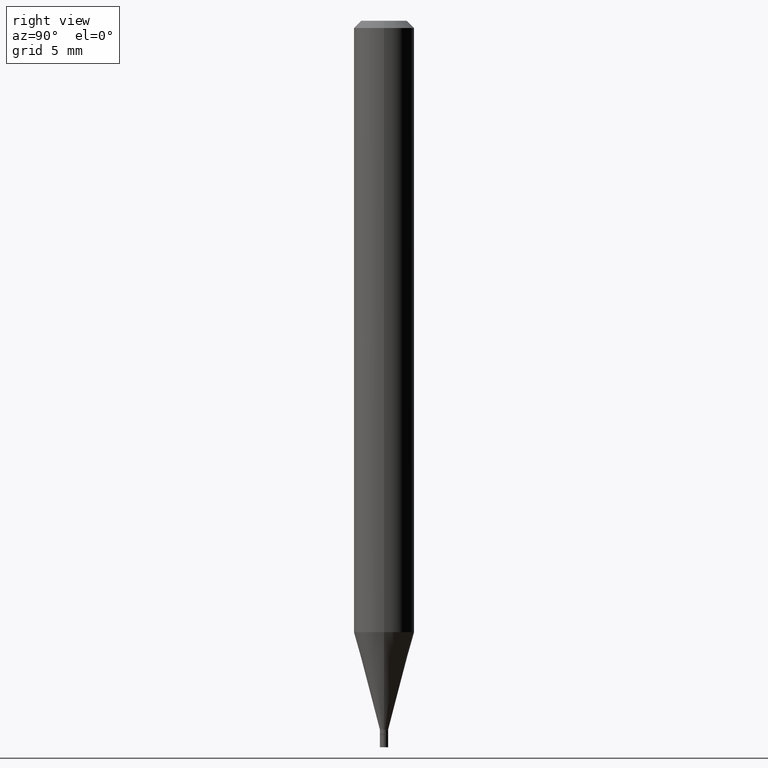
[diagram: clean part render]
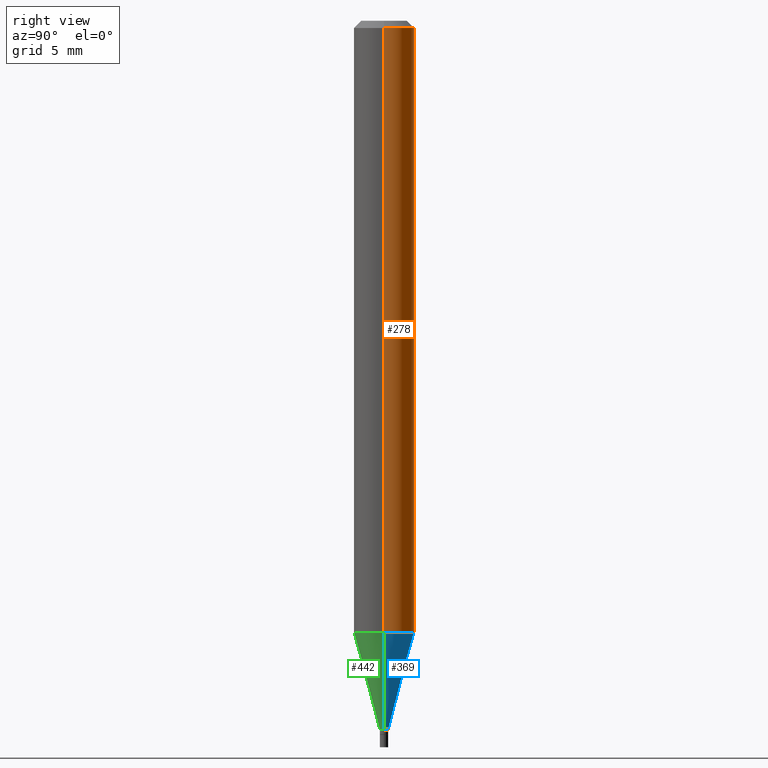
[diagram: same view with three faces highlighted in distinct colors, each labeled with its STEP entity id]
A machine part, right view with three faces highlighted in distinct colors.
Their STEP definitions:

[orange] entity #278 — the highlighted cylindrical surface (edge-blend (fillet) strip) has radius 1.5875 mm, axis along (-0, 0, 1).
#16 = ORIENTED_EDGE ( 'NONE', *, *, #431, .T. ) ;
#21 = CARTESIAN_POINT ( 'NONE',  ( 0.06249999999999999306, -4.844323016908731836E-15, -1.262469256391280936 ) ) ;
#22 = CYLINDRICAL_SURFACE ( 'NONE', #131, 0.06250000000000000000 ) ;
#34 = AXIS2_PLACEMENT_3D ( 'NONE', #208, #90, #95 ) ;
#41 = LINE ( 'NONE', #184, #362 ) ;
#44 = DIRECTION ( 'NONE',  ( -2.445468806185136877E-29, 3.491481338843145188E-15, 1.000000000000000000 ) ) ;
#57 = DIRECTION ( 'NONE',  ( -2.445468806185136597E-29, 3.491481338843145583E-15, 1.000000000000000000 ) ) ;
#68 = ORIENTED_EDGE ( 'NONE', *, *, #85, .F. ) ;
#74 = DIRECTION ( 'NONE',  ( -2.445468806185136877E-29, 3.491481338843145188E-15, 1.000000000000000000 ) ) ;
#80 = CARTESIAN_POINT ( 'NONE',  ( -0.06250000000000000000, -1.786040824967931204E-15, -0.01499999999999999944 ) ) ;
#82 = VERTEX_POINT ( 'NONE', #80 ) ;
#85 = EDGE_CURVE ( 'NONE', #167, #319, #310, .T. ) ;
#90 = DIRECTION ( 'NONE',  ( -2.445468806185136597E-29, 3.491481338843145583E-15, 1.000000000000000000 ) ) ;
#95 = DIRECTION ( 'NONE',  ( 1.000000000000000000, -6.982962677686266711E-15, 0.000000000000000000 ) ) ;
#99 = DIRECTION ( 'NONE',  ( 1.000000000000000000, -6.982962677686266711E-15, 4.876176775795935793E-29 ) ) ;
#107 = EDGE_CURVE ( 'NONE', #167, #134, #260, .T. ) ;
#121 = CIRCLE ( 'NONE', #34, 0.06250000000000000000 ) ;
#131 = AXIS2_PLACEMENT_3D ( 'NONE', #370, #57, #99 ) ;
#134 = VERTEX_POINT ( 'NONE', #332 ) ;
#167 = VERTEX_POINT ( 'NONE', #21 ) ;
#184 = CARTESIAN_POINT ( 'NONE',  ( -0.06250000000000000000, 4.440892098500626162E-16, -3.074334431409316114E-30 ) ) ;
#208 = CARTESIAN_POINT ( 'NONE',  ( 3.668203209277705088E-31, -5.237222008264718399E-17, -0.01499999999999999944 ) ) ;
#260 = CIRCLE ( 'NONE', #413, 0.06250000000000000000 ) ;
#270 = EDGE_CURVE ( 'NONE', #319, #82, #121, .T. ) ;
#275 = CARTESIAN_POINT ( 'NONE',  ( 3.087329185272623202E-29, -4.407887849553340167E-15, -1.262469256391280936 ) ) ;
#278 = ADVANCED_FACE ( 'NONE', ( #372 ), #22, .T. ) ;
#291 = EDGE_LOOP ( 'NONE', ( #409, #16, #345, #68 ) ) ;
#295 = DIRECTION ( 'NONE',  ( 1.000000000000000000, -6.982962677686262766E-15, 0.000000000000000000 ) ) ;
#310 = LINE ( 'NONE', #354, #327 ) ;
#319 = VERTEX_POINT ( 'NONE', #448 ) ;
#326 = DIRECTION ( 'NONE',  ( -2.445468806185136597E-29, 3.491481338843145583E-15, 1.000000000000000000 ) ) ;
#327 = VECTOR ( 'NONE', #44, 39.37007874015748143 ) ;
#332 = CARTESIAN_POINT ( 'NONE',  ( -0.06249999999999999306, -3.963798639703278339E-15, -1.262469256391280936 ) ) ;
#345 = ORIENTED_EDGE ( 'NONE', *, *, #270, .F. ) ;
#354 = CARTESIAN_POINT ( 'NONE',  ( 0.06250000000000000000, -4.364351673553916694E-16, 3.047610484872459871E-30 ) ) ;
#362 = VECTOR ( 'NONE', #74, 39.37007874015748143 ) ;
#370 = CARTESIAN_POINT ( 'NONE',  ( 0.000000000000000000, 0.000000000000000000, 0.000000000000000000 ) ) ;
#372 = FACE_OUTER_BOUND ( 'NONE', #291, .T. ) ;
#409 = ORIENTED_EDGE ( 'NONE', *, *, #107, .T. ) ;
#413 = AXIS2_PLACEMENT_3D ( 'NONE', #275, #326, #295 ) ;
#431 = EDGE_CURVE ( 'NONE', #134, #82, #41, .T. ) ;
#448 = CARTESIAN_POINT ( 'NONE',  ( 0.06250000000000000000, -4.888073874380388472E-16, -0.01499999999999999944 ) ) ;

[blue] entity #369 — the highlighted conical surface has half-angle 15 deg.
#2 = CIRCLE ( 'NONE', #247, 0.008499999999999922548 ) ;
#21 = CARTESIAN_POINT ( 'NONE',  ( 0.06249999999999999306, -4.844323016908731836E-15, -1.262469256391280936 ) ) ;
#33 = CARTESIAN_POINT ( 'NONE',  ( 0.008499999999999922548, -5.170883862826697886E-15, -1.463999999999999968 ) ) ;
#36 = CARTESIAN_POINT ( 'NONE',  ( -0.008499999999999922548, -5.051132547526757800E-15, -1.463999999999999968 ) ) ;
#37 = EDGE_CURVE ( 'NONE', #91, #124, #2, .T. ) ;
#48 = VECTOR ( 'NONE', #227, 39.37007874015747433 ) ;
#72 = FACE_OUTER_BOUND ( 'NONE', #142, .T. ) ;
#91 = VERTEX_POINT ( 'NONE', #33 ) ;
#107 = EDGE_CURVE ( 'NONE', #167, #134, #260, .T. ) ;
#124 = VERTEX_POINT ( 'NONE', #445 ) ;
#134 = VERTEX_POINT ( 'NONE', #332 ) ;
#142 = EDGE_LOOP ( 'NONE', ( #402, #166, #337, #324 ) ) ;
#144 = CARTESIAN_POINT ( 'NONE',  ( 0.008499999999999922548, -5.170883862826697886E-15, -1.463999999999999968 ) ) ;
#153 = LINE ( 'NONE', #144, #284 ) ;
#156 = CARTESIAN_POINT ( 'NONE',  ( 3.580166332255040005E-29, -5.111528680066365187E-15, -1.463999999999999968 ) ) ;
#166 = ORIENTED_EDGE ( 'NONE', *, *, #342, .T. ) ;
#167 = VERTEX_POINT ( 'NONE', #21 ) ;
#195 = CONICAL_SURFACE ( 'NONE', #322, 0.008499999999999922548, 0.2617993877991501295 ) ;
#224 = CARTESIAN_POINT ( 'NONE',  ( 3.580166332255040005E-29, -5.111528680066365187E-15, -1.463999999999999968 ) ) ;
#227 = DIRECTION ( 'NONE',  ( -0.2588190451025214611, 5.211531920934551042E-15, 0.9659258262890682012 ) ) ;
#246 = DIRECTION ( 'NONE',  ( -2.445468806185136597E-29, 3.491481338843145583E-15, 1.000000000000000000 ) ) ;
#247 = AXIS2_PLACEMENT_3D ( 'NONE', #224, #246, #348 ) ;
#250 = DIRECTION ( 'NONE',  ( -2.445468806185136597E-29, 3.491481338843145583E-15, 1.000000000000000000 ) ) ;
#260 = CIRCLE ( 'NONE', #413, 0.06250000000000000000 ) ;
#275 = CARTESIAN_POINT ( 'NONE',  ( 3.087329185272623202E-29, -4.407887849553340167E-15, -1.262469256391280936 ) ) ;
#284 = VECTOR ( 'NONE', #401, 39.37007874015747433 ) ;
#295 = DIRECTION ( 'NONE',  ( 1.000000000000000000, -6.982962677686262766E-15, 0.000000000000000000 ) ) ;
#322 = AXIS2_PLACEMENT_3D ( 'NONE', #156, #250, #393 ) ;
#324 = ORIENTED_EDGE ( 'NONE', *, *, #339, .F. ) ;
#326 = DIRECTION ( 'NONE',  ( -2.445468806185136597E-29, 3.491481338843145583E-15, 1.000000000000000000 ) ) ;
#332 = CARTESIAN_POINT ( 'NONE',  ( -0.06249999999999999306, -3.963798639703278339E-15, -1.262469256391280936 ) ) ;
#337 = ORIENTED_EDGE ( 'NONE', *, *, #107, .F. ) ;
#339 = EDGE_CURVE ( 'NONE', #91, #167, #153, .T. ) ;
#342 = EDGE_CURVE ( 'NONE', #124, #134, #439, .T. ) ;
#348 = DIRECTION ( 'NONE',  ( 1.000000000000000000, -6.982962677686225690E-15, 0.000000000000000000 ) ) ;
#369 = ADVANCED_FACE ( 'NONE', ( #72 ), #195, .T. ) ;
#393 = DIRECTION ( 'NONE',  ( 1.000000000000000000, -6.982962677686225690E-15, 0.000000000000000000 ) ) ;
#401 = DIRECTION ( 'NONE',  ( 0.2588190451025214611, 1.565188264969621573E-15, 0.9659258262890682012 ) ) ;
#402 = ORIENTED_EDGE ( 'NONE', *, *, #37, .T. ) ;
#413 = AXIS2_PLACEMENT_3D ( 'NONE', #275, #326, #295 ) ;
#439 = LINE ( 'NONE', #36, #48 ) ;
#445 = CARTESIAN_POINT ( 'NONE',  ( -0.008499999999999922548, -4.507465593615018070E-15, -1.463999999999999968 ) ) ;

[green] entity #442 — the highlighted conical surface has half-angle 15 deg.
#4 = FACE_OUTER_BOUND ( 'NONE', #9, .T. ) ;
#9 = EDGE_LOOP ( 'NONE', ( #220, #205, #58, #273 ) ) ;
#14 = CARTESIAN_POINT ( 'NONE',  ( 3.580166332255040005E-29, -5.111528680066365187E-15, -1.463999999999999968 ) ) ;
#21 = CARTESIAN_POINT ( 'NONE',  ( 0.06249999999999999306, -4.844323016908731836E-15, -1.262469256391280936 ) ) ;
#33 = CARTESIAN_POINT ( 'NONE',  ( 0.008499999999999922548, -5.170883862826697886E-15, -1.463999999999999968 ) ) ;
#36 = CARTESIAN_POINT ( 'NONE',  ( -0.008499999999999922548, -5.051132547526757800E-15, -1.463999999999999968 ) ) ;
#48 = VECTOR ( 'NONE', #227, 39.37007874015747433 ) ;
#58 = ORIENTED_EDGE ( 'NONE', *, *, #339, .T. ) ;
#59 = DIRECTION ( 'NONE',  ( 1.000000000000000000, -6.982962677686262766E-15, 0.000000000000000000 ) ) ;
#79 = CARTESIAN_POINT ( 'NONE',  ( 3.580166332255040005E-29, -5.111528680066365187E-15, -1.463999999999999968 ) ) ;
#91 = VERTEX_POINT ( 'NONE', #33 ) ;
#96 = CARTESIAN_POINT ( 'NONE',  ( 3.087329185272623202E-29, -4.407887849553340167E-15, -1.262469256391280936 ) ) ;
#111 = DIRECTION ( 'NONE',  ( 1.000000000000000000, -6.982962677686225690E-15, 0.000000000000000000 ) ) ;
#115 = CONICAL_SURFACE ( 'NONE', #242, 0.008499999999999922548, 0.2617993877991501295 ) ;
#124 = VERTEX_POINT ( 'NONE', #445 ) ;
#134 = VERTEX_POINT ( 'NONE', #332 ) ;
#144 = CARTESIAN_POINT ( 'NONE',  ( 0.008499999999999922548, -5.170883862826697886E-15, -1.463999999999999968 ) ) ;
#153 = LINE ( 'NONE', #144, #284 ) ;
#167 = VERTEX_POINT ( 'NONE', #21 ) ;
#171 = DIRECTION ( 'NONE',  ( -2.445468806185136597E-29, 3.491481338843145583E-15, 1.000000000000000000 ) ) ;
#203 = CIRCLE ( 'NONE', #462, 0.008499999999999922548 ) ;
#204 = AXIS2_PLACEMENT_3D ( 'NONE', #96, #171, #59 ) ;
#205 = ORIENTED_EDGE ( 'NONE', *, *, #265, .T. ) ;
#220 = ORIENTED_EDGE ( 'NONE', *, *, #342, .F. ) ;
#227 = DIRECTION ( 'NONE',  ( -0.2588190451025214611, 5.211531920934551042E-15, 0.9659258262890682012 ) ) ;
#242 = AXIS2_PLACEMENT_3D ( 'NONE', #79, #464, #111 ) ;
#265 = EDGE_CURVE ( 'NONE', #124, #91, #203, .T. ) ;
#273 = ORIENTED_EDGE ( 'NONE', *, *, #456, .F. ) ;
#284 = VECTOR ( 'NONE', #401, 39.37007874015747433 ) ;
#292 = DIRECTION ( 'NONE',  ( -2.445468806185136597E-29, 3.491481338843145583E-15, 1.000000000000000000 ) ) ;
#332 = CARTESIAN_POINT ( 'NONE',  ( -0.06249999999999999306, -3.963798639703278339E-15, -1.262469256391280936 ) ) ;
#339 = EDGE_CURVE ( 'NONE', #91, #167, #153, .T. ) ;
#342 = EDGE_CURVE ( 'NONE', #124, #134, #439, .T. ) ;
#398 = CIRCLE ( 'NONE', #204, 0.06250000000000000000 ) ;
#401 = DIRECTION ( 'NONE',  ( 0.2588190451025214611, 1.565188264969621573E-15, 0.9659258262890682012 ) ) ;
#439 = LINE ( 'NONE', #36, #48 ) ;
#440 = DIRECTION ( 'NONE',  ( 1.000000000000000000, -6.982962677686225690E-15, 0.000000000000000000 ) ) ;
#442 = ADVANCED_FACE ( 'NONE', ( #4 ), #115, .T. ) ;
#445 = CARTESIAN_POINT ( 'NONE',  ( -0.008499999999999922548, -4.507465593615018070E-15, -1.463999999999999968 ) ) ;
#456 = EDGE_CURVE ( 'NONE', #134, #167, #398, .T. ) ;
#462 = AXIS2_PLACEMENT_3D ( 'NONE', #14, #292, #440 ) ;
#464 = DIRECTION ( 'NONE',  ( -2.445468806185136597E-29, 3.491481338843145583E-15, 1.000000000000000000 ) ) ;